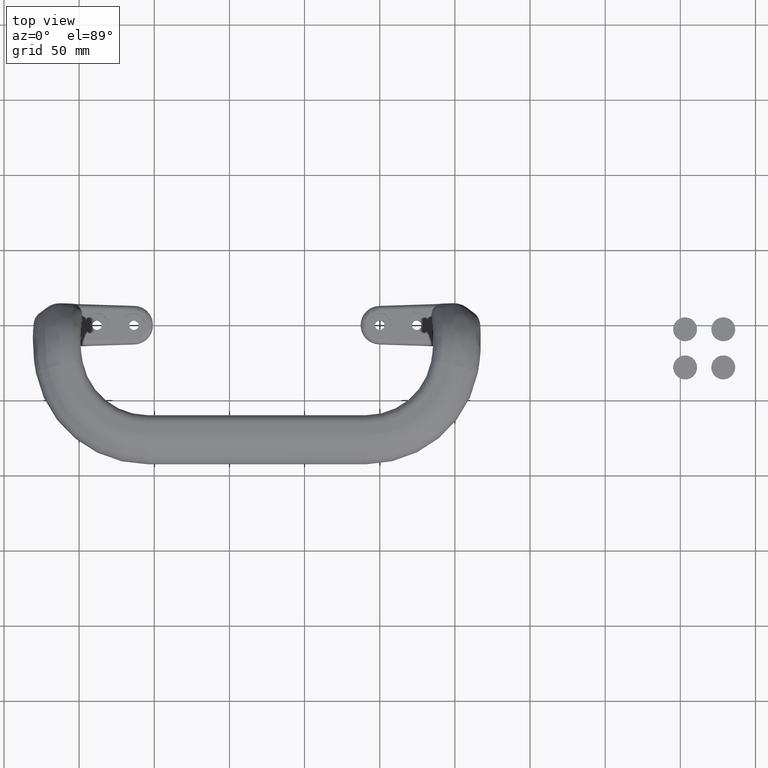
[diagram: clean part render]
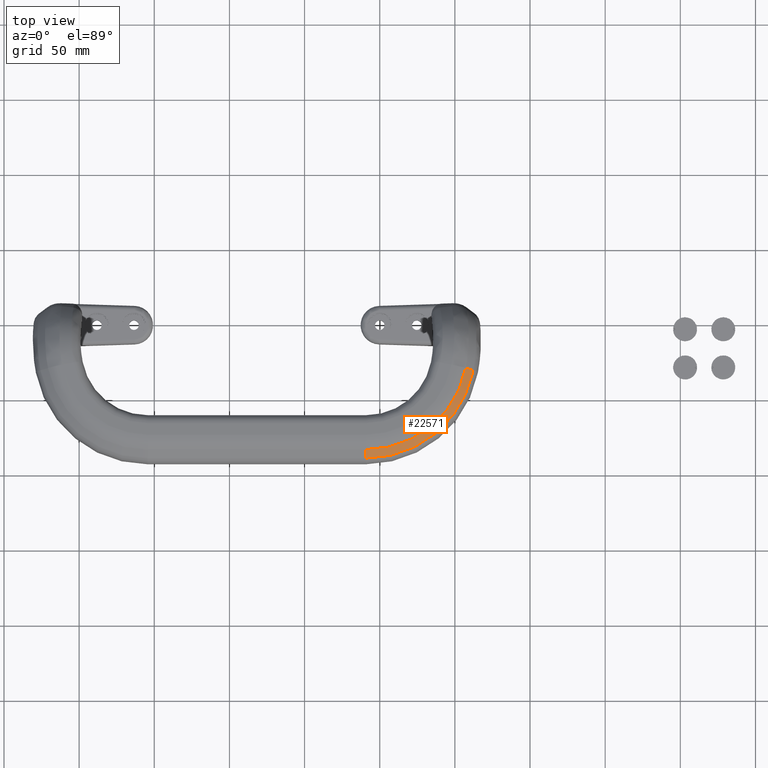
[diagram: same view with one face highlighted and labeled with its STEP entity id]
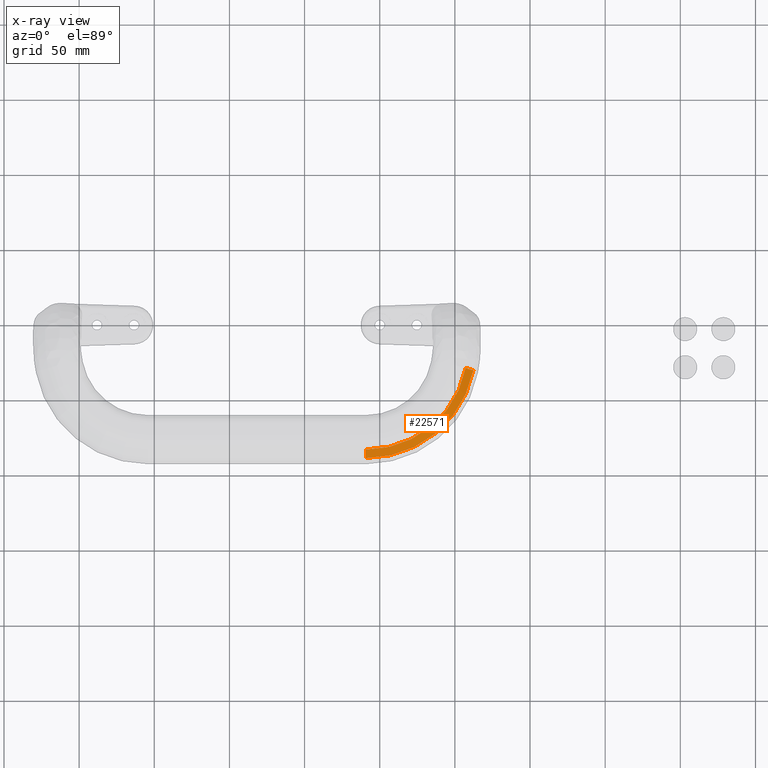
[diagram: x-ray of the same camera — body ghosted, the highlighted face saturated]
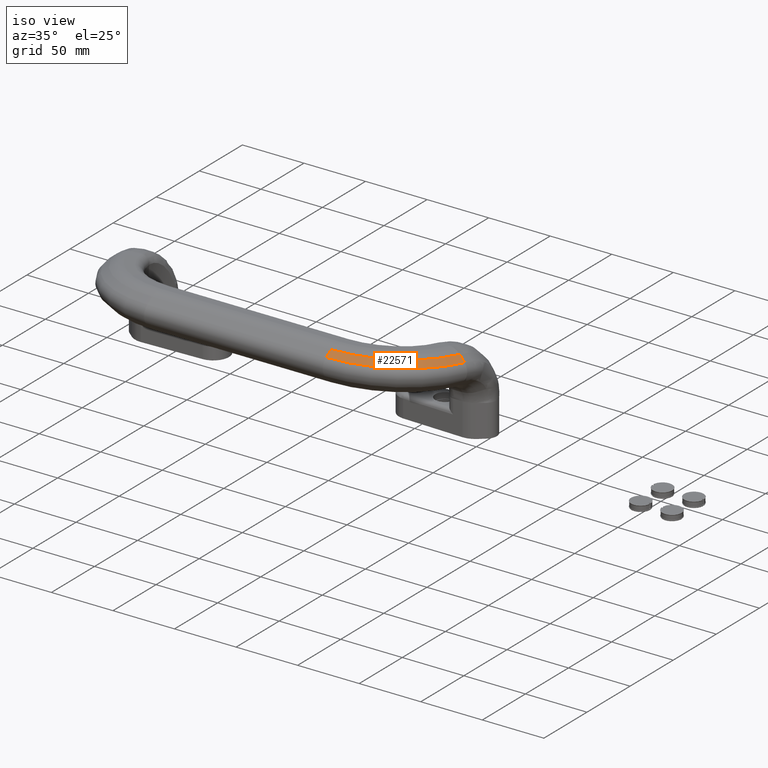
[diagram: same view with one face highlighted and labeled with its STEP entity id]
A machine part, top view. The second image highlights one B-rep face of the part: STEP entity #22571.
The next image is the same camera in x-ray: the body ghosted, the highlighted face saturated — about 0% of this face is hidden behind the body in this view.
A second angle (iso view) of the same face is appended — the face is thin or edge-on in the first view.
In plain terms, the highlighted conical surface has half-angle 50.131 deg.
Its self-contained STEP definition (entity closure, byte-faithful):
#272=CONICAL_SURFACE('',#23917,2.6605596307,0.874959477401);
#2351=FACE_OUTER_BOUND('',#3753,.T.);
#3753=EDGE_LOOP('',(#15663,#15664,#15665,#15666));
#5420=LINE('',#35175,#6693);
#5461=LINE('',#36233,#6734);
#6693=VECTOR('',#27038,0.393700787401575);
#6734=VECTOR('',#27199,0.00155000310000928);
#7407=CIRCLE('',#23916,2.66055713372);
#7408=CIRCLE('',#23918,2.86158897137);
#9074=VERTEX_POINT('',#35101);
#9077=VERTEX_POINT('',#35174);
#9126=VERTEX_POINT('',#36228);
#9127=VERTEX_POINT('',#36232);
#11356=EDGE_CURVE('',#9074,#9077,#5420,.T.);
#11449=EDGE_CURVE('',#9074,#9126,#7407,.T.);
#11450=EDGE_CURVE('',#9126,#9127,#5461,.T.);
#11451=EDGE_CURVE('',#9077,#9127,#7408,.T.);
#15663=ORIENTED_EDGE('',*,*,#11356,.F.);
#15664=ORIENTED_EDGE('',*,*,#11449,.T.);
#15665=ORIENTED_EDGE('',*,*,#11450,.T.);
#15666=ORIENTED_EDGE('',*,*,#11451,.F.);
#22571=ADVANCED_FACE('',(#2351),#272,.T.);
#23916=AXIS2_PLACEMENT_3D('',#36230,#27195,#27196);
#23917=AXIS2_PLACEMENT_3D('',#36231,#27197,#27198);
#23918=AXIS2_PLACEMENT_3D('',#36234,#27200,#27201);
#27038=DIRECTION('',(0.753713331551638,-0.221068141927003,-0.618906366477412));
#27195=DIRECTION('center_axis',(-4.51028103753939E-17,-0.120449648613414,
-0.992719437781343));
#27196=DIRECTION('ref_axis',(1.,0.,-4.54335924722049E-17));
#27197=DIRECTION('center_axis',(0.,-0.120449648613414,-0.992719437781343));
#27198=DIRECTION('ref_axis',(0.98200700203607,-0.187469613153718,0.022746254551562));
#27199=DIRECTION('',(2.88369354113318E-14,-0.839141160232737,-0.543913700143006));
#27200=DIRECTION('center_axis',(9.02056207507878E-17,-0.120449648613414,
-0.992719437781343));
#27201=DIRECTION('ref_axis',(1.,0.,9.08671849444099E-17));
#35101=CARTESIAN_POINT('',(2.25268770809,-1.16350620943,2.71208072923));
#35174=CARTESIAN_POINT('',(2.45011484241582,-1.22141272588683,2.54998298443377));
#35175=CARTESIAN_POINT('',(2.25269200272,-1.16350859256,2.71208681115));
#36228=CARTESIAN_POINT('',(-0.360001069997992,-3.30593062068025,2.97202977768673));
#36230=CARTESIAN_POINT('Origin',(-0.36,-0.664742174866,2.65156403902));
#36231=CARTESIAN_POINT('Origin',(-0.36,-0.664741221287,2.6515718982));
#36232=CARTESIAN_POINT('',(-0.359999987528621,-3.52571962616027,2.82957273189849));
#36233=CARTESIAN_POINT('',(-0.36,-3.41582503709,2.90080402516));
#36234=CARTESIAN_POINT('Origin',(-0.36,-0.684964597314,2.4848952934));